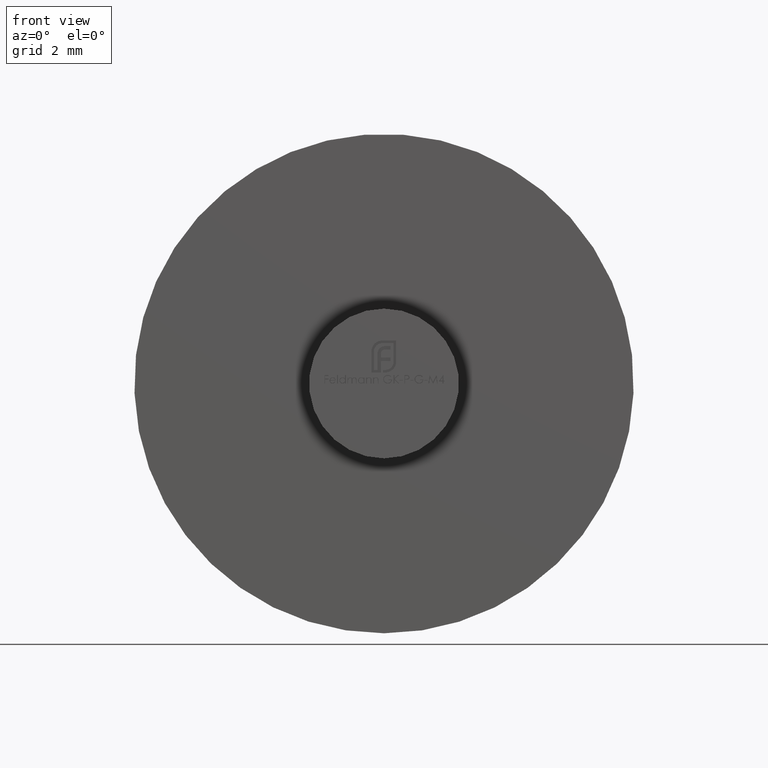
[diagram: clean part render]
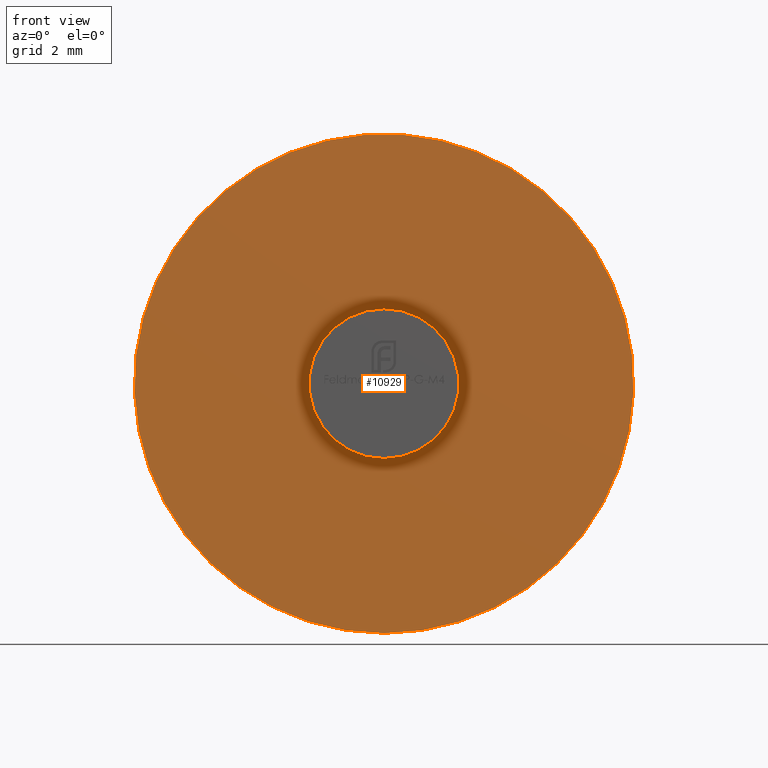
[diagram: same view with one face highlighted and labeled with its STEP entity id]
A machine part, front view. The second image highlights one B-rep face of the part: STEP entity #10929.
In plain terms, the highlighted planar face has unit normal (0, -1, -0).
Its self-contained STEP definition (entity closure, byte-faithful):
#64 = DIRECTION ( 'NONE',  ( 0.000000000000000000, -1.000000000000000000, -0.000000000000000000 ) ) ;
#106 = DIRECTION ( 'NONE',  ( -0.000000000000000000, -1.000000000000000000, -0.000000000000000000 ) ) ;
#272 = CARTESIAN_POINT ( 'NONE',  ( 0.000000000000000000, 1.999999999999999112, -4.500000000000000000 ) ) ;
#609 = DIRECTION ( 'NONE',  ( -0.000000000000000000, -1.000000000000000000, -0.000000000000000000 ) ) ;
#1282 = VERTEX_POINT ( 'NONE', #5101 ) ;
#1588 = EDGE_LOOP ( 'NONE', ( #9490 ) ) ;
#1800 = AXIS2_PLACEMENT_3D ( 'NONE', #5857, #64, #8738 ) ;
#2051 = FACE_OUTER_BOUND ( 'NONE', #10251, .T. ) ;
#2485 = CARTESIAN_POINT ( 'NONE',  ( 0.000000000000000000, 1.999999999999999112, 0.000000000000000000 ) ) ;
#2951 = PLANE ( 'NONE',  #1800 ) ;
#3141 = ORIENTED_EDGE ( 'NONE', *, *, #7000, .T. ) ;
#3719 = AXIS2_PLACEMENT_3D ( 'NONE', #2485, #609, #8243 ) ;
#5101 = CARTESIAN_POINT ( 'NONE',  ( 0.000000000000000000, 2.000000000000000000, -1.350000000000000089 ) ) ;
#5857 = CARTESIAN_POINT ( 'NONE',  ( 1.350000000000000089, 1.999999999999999556, 0.000000000000000000 ) ) ;
#5934 = DIRECTION ( 'NONE',  ( 0.000000000000000000, 0.000000000000000000, -1.000000000000000000 ) ) ;
#6077 = CIRCLE ( 'NONE', #3719, 4.500000000000000000 ) ;
#7000 = EDGE_CURVE ( 'NONE', #8747, #8747, #6077, .T. ) ;
#7123 = CIRCLE ( 'NONE', #9475, 1.350000000000000089 ) ;
#8243 = DIRECTION ( 'NONE',  ( 0.000000000000000000, 0.000000000000000000, -1.000000000000000000 ) ) ;
#8738 = DIRECTION ( 'NONE',  ( 0.000000000000000000, 0.000000000000000000, -1.000000000000000000 ) ) ;
#8747 = VERTEX_POINT ( 'NONE', #272 ) ;
#9475 = AXIS2_PLACEMENT_3D ( 'NONE', #11552, #106, #5934 ) ;
#9490 = ORIENTED_EDGE ( 'NONE', *, *, #10939, .F. ) ;
#10251 = EDGE_LOOP ( 'NONE', ( #3141 ) ) ;
#10259 = FACE_BOUND ( 'NONE', #1588, .T. ) ;
#10929 = ADVANCED_FACE ( 'NONE', ( #2051, #10259 ), #2951, .T. ) ;
#10939 = EDGE_CURVE ( 'NONE', #1282, #1282, #7123, .T. ) ;
#11552 = CARTESIAN_POINT ( 'NONE',  ( 0.000000000000000000, 2.000000000000000000, 0.000000000000000000 ) ) ;